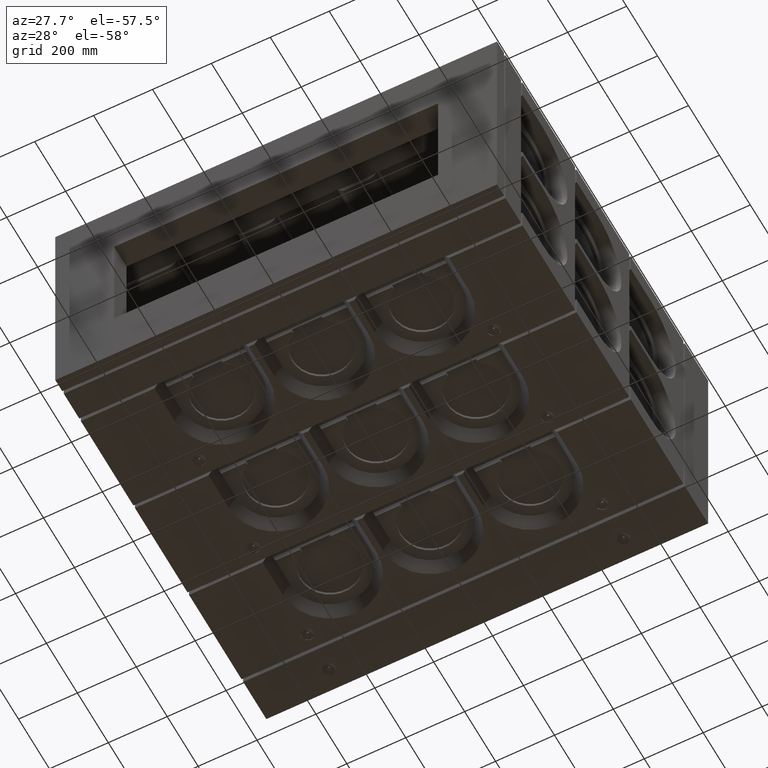
[diagram: clean part render]
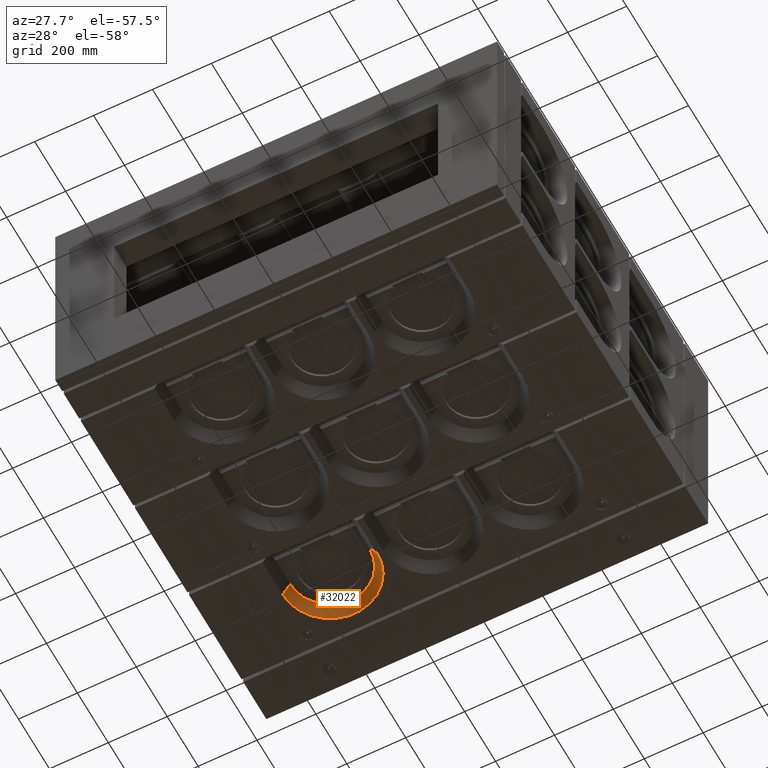
[diagram: same view with one face highlighted and labeled with its STEP entity id]
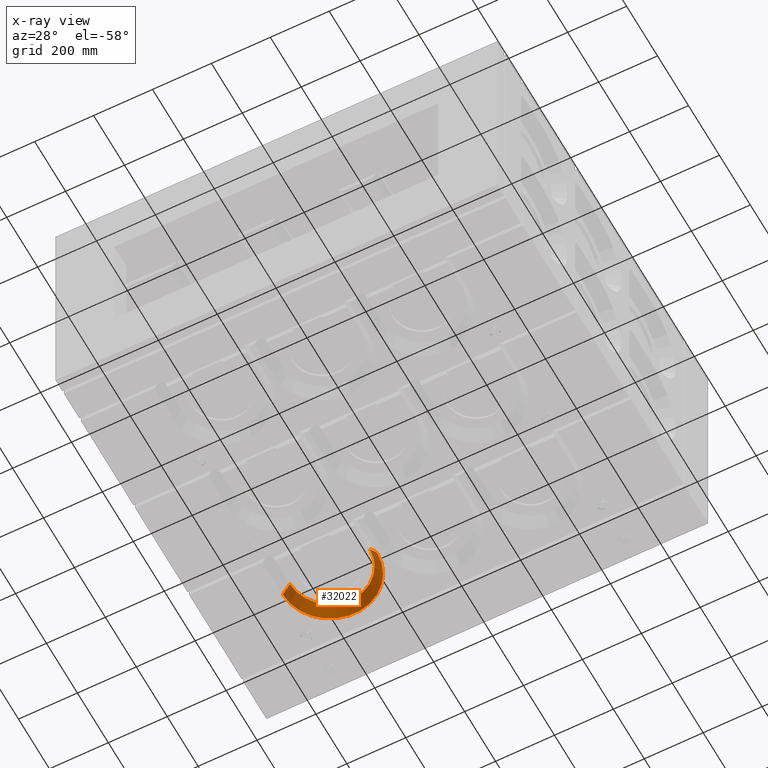
[diagram: x-ray of the same camera — body ghosted, the highlighted face saturated]
A machine part, auxiliary view. The second image highlights one B-rep face of the part: STEP entity #32022.
The next image is the same camera in x-ray: the body ghosted, the highlighted face saturated — about 0% of this face is hidden behind the body in this view.
In plain terms, the highlighted conical surface has half-angle 32 deg.
Its self-contained STEP definition (entity closure, byte-faithful):
#1085 = CARTESIAN_POINT ( 'NONE',  ( -179.9999999999999432, 995.0000000000003411, -400.0000000000001137 ) ) ;
#1898 = DIRECTION ( 'NONE',  ( -0.5299192642332060110, 4.236851350540763916E-16, -0.8480480961564252906 ) ) ;
#4454 = DIRECTION ( 'NONE',  ( 1.734723475976807711E-17, -4.996003610813204432E-16, 1.000000000000000000 ) ) ;
#4976 = FACE_OUTER_BOUND ( 'NONE', #25212, .T. ) ;
#11113 = VERTEX_POINT ( 'NONE', #36551 ) ;
#15272 = CARTESIAN_POINT ( 'NONE',  ( -180.0000000000000568, 995.0000000000003411, -400.0000000000001137 ) ) ;
#15444 = EDGE_CURVE ( 'NONE', #11113, #18253, #16683, .T. ) ;
#16674 = VERTEX_POINT ( 'NONE', #37659 ) ;
#16683 = LINE ( 'NONE', #1085, #30120 ) ;
#18226 = DIRECTION ( 'NONE',  ( 1.000000000000000000, 0.0000000000000000000, 0.0000000000000000000 ) ) ;
#18253 = VERTEX_POINT ( 'NONE', #15272 ) ;
#19658 = AXIS2_PLACEMENT_3D ( 'NONE', #21697, #4454, #18226 ) ;
#21697 = CARTESIAN_POINT ( 'NONE',  ( -339.9999999999999432, 995.0000000000003411, -400.0000000000001137 ) ) ;
#21723 = VECTOR ( 'NONE', #1898, 1000.000000000000114 ) ;
#22784 = LINE ( 'NONE', #29761, #21723 ) ;
#24362 = DIRECTION ( 'NONE',  ( -1.000000000000000000, 0.0000000000000000000, 0.0000000000000000000 ) ) ;
#24758 = ORIENTED_EDGE ( 'NONE', *, *, #42896, .T. ) ;
#25212 = EDGE_LOOP ( 'NONE', ( #37519, #29747, #35746, #24758 ) ) ;
#25701 = DIRECTION ( 'NONE',  ( 1.000000000000000000, 0.0000000000000000000, 0.0000000000000000000 ) ) ;
#28805 = DIRECTION ( 'NONE',  ( 0.5299192642332060110, 4.236851350540763916E-16, -0.8480480961564252906 ) ) ;
#29747 = ORIENTED_EDGE ( 'NONE', *, *, #15444, .F. ) ;
#29761 = CARTESIAN_POINT ( 'NONE',  ( -500.0000000000001137, 995.0000000000003411, -400.0000000000001137 ) ) ;
#29818 = CIRCLE ( 'NONE', #19658, 160.0000000000000284 ) ;
#29903 = CONICAL_SURFACE ( 'NONE', #43035, 160.0000000000000284, 0.5585053606381866764 ) ;
#30120 = VECTOR ( 'NONE', #28805, 1000.000000000000114 ) ;
#31188 = AXIS2_PLACEMENT_3D ( 'NONE', #41794, #42108, #24362 ) ;
#31349 = EDGE_CURVE ( 'NONE', #18253, #41809, #29818, .T. ) ;
#32022 = ADVANCED_FACE ( 'NONE', ( #4976 ), #29903, .F. ) ;
#33214 = DIRECTION ( 'NONE',  ( -1.734723475976807711E-17, 4.996003610813204432E-16, -1.000000000000000000 ) ) ;
#35746 = ORIENTED_EDGE ( 'NONE', *, *, #40334, .T. ) ;
#36551 = CARTESIAN_POINT ( 'NONE',  ( -204.9947740763731190, 995.0000000000003411, -360.0000000000001137 ) ) ;
#37519 = ORIENTED_EDGE ( 'NONE', *, *, #31349, .F. ) ;
#37659 = CARTESIAN_POINT ( 'NONE',  ( -475.0052259236269379, 995.0000000000003411, -360.0000000000001137 ) ) ;
#39840 = CARTESIAN_POINT ( 'NONE',  ( -339.9999999999999432, 995.0000000000003411, -400.0000000000001137 ) ) ;
#40003 = CARTESIAN_POINT ( 'NONE',  ( -500.0000000000001137, 995.0000000000003411, -400.0000000000001137 ) ) ;
#40334 = EDGE_CURVE ( 'NONE', #11113, #16674, #41613, .T. ) ;
#41613 = CIRCLE ( 'NONE', #31188, 135.0052259236268526 ) ;
#41794 = CARTESIAN_POINT ( 'NONE',  ( -339.9999999999999432, 995.0000000000003411, -360.0000000000001137 ) ) ;
#41809 = VERTEX_POINT ( 'NONE', #40003 ) ;
#42108 = DIRECTION ( 'NONE',  ( 1.734723475976807711E-17, -4.996003610813204432E-16, 1.000000000000000000 ) ) ;
#42896 = EDGE_CURVE ( 'NONE', #16674, #41809, #22784, .T. ) ;
#43035 = AXIS2_PLACEMENT_3D ( 'NONE', #39840, #33214, #25701 ) ;